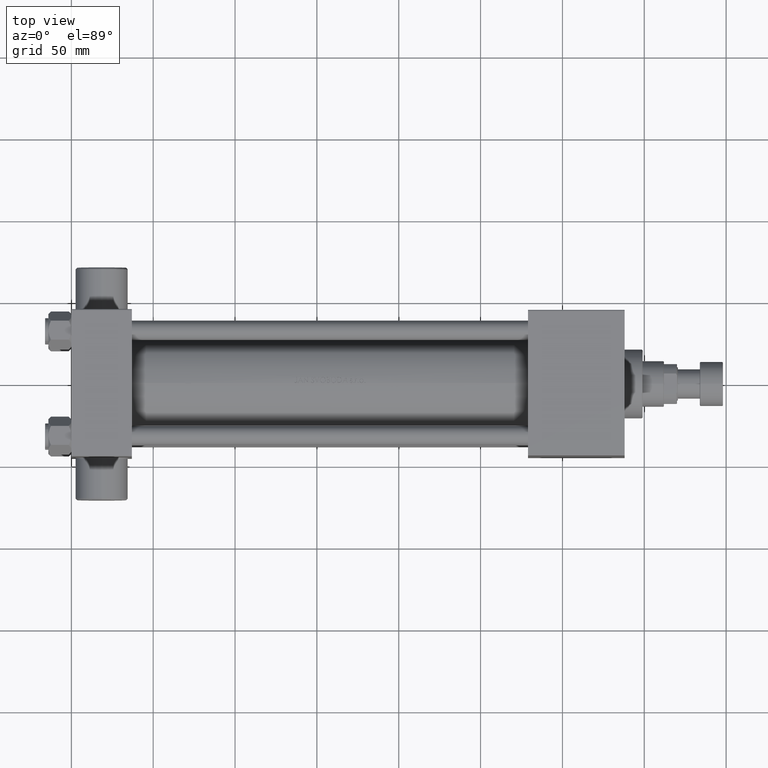
[diagram: clean part render]
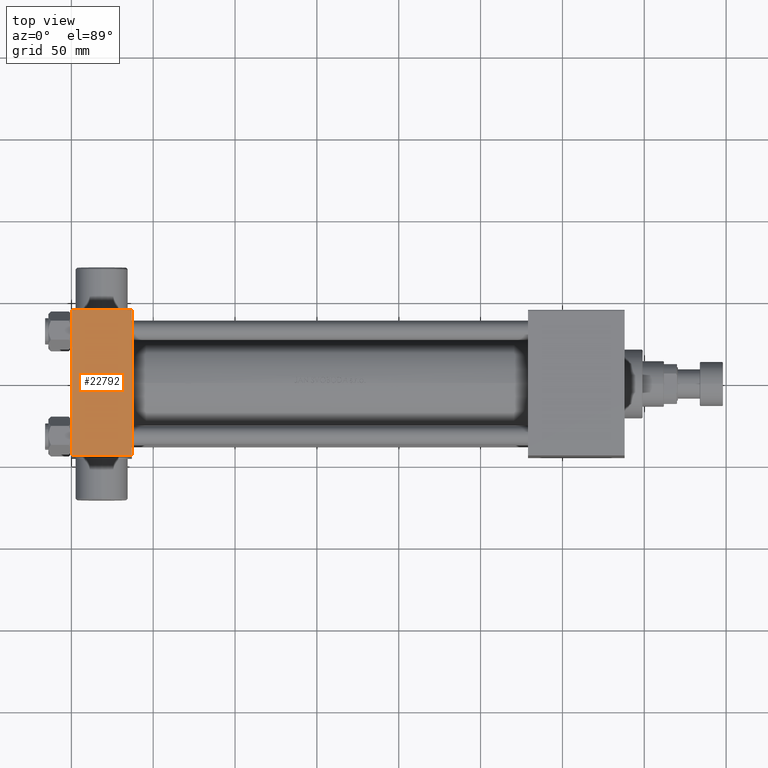
[diagram: same view with one face highlighted and labeled with its STEP entity id]
A machine part, top view. The second image highlights one B-rep face of the part: STEP entity #22792.
In plain terms, the highlighted planar face has unit normal (0, 0, -1).
Its self-contained STEP definition (entity closure, byte-faithful):
#83 = LINE ( 'NONE', #32972, #18837 ) ;
#271 = VECTOR ( 'NONE', #46014, 1000.000000000000000 ) ;
#521 = PLANE ( 'NONE',  #14014 ) ;
#3953 = LINE ( 'NONE', #21218, #41964 ) ;
#4535 = DIRECTION ( 'NONE',  ( 0.000000000000000000, 1.541976423090495633E-16, -1.000000000000000000 ) ) ;
#6140 = EDGE_CURVE ( 'NONE', #29141, #9899, #83, .T. ) ;
#9857 = VERTEX_POINT ( 'NONE', #37502 ) ;
#9899 = VERTEX_POINT ( 'NONE', #39124 ) ;
#12685 = VECTOR ( 'NONE', #18140, 1000.000000000000000 ) ;
#14014 = AXIS2_PLACEMENT_3D ( 'NONE', #29356, #4535, #19866 ) ;
#14391 = ORIENTED_EDGE ( 'NONE', *, *, #15393, .T. ) ;
#14592 = LINE ( 'NONE', #25008, #12685 ) ;
#15393 = EDGE_CURVE ( 'NONE', #9857, #40842, #17635, .T. ) ;
#17431 = DIRECTION ( 'NONE',  ( -1.000000000000000000, 0.000000000000000000, 0.000000000000000000 ) ) ;
#17635 = LINE ( 'NONE', #31608, #271 ) ;
#18140 = DIRECTION ( 'NONE',  ( 1.000000000000000000, 0.000000000000000000, 0.000000000000000000 ) ) ;
#18837 = VECTOR ( 'NONE', #29387, 1000.000000000000000 ) ;
#19866 = DIRECTION ( 'NONE',  ( 0.000000000000000000, 1.000000000000000000, 1.541976423090495633E-16 ) ) ;
#21218 = CARTESIAN_POINT ( 'NONE',  ( 0.000000000000000000, 44.49999999999998579, 45.00000000000001421 ) ) ;
#22792 = ADVANCED_FACE ( 'NONE', ( #36932 ), #521, .F. ) ;
#24433 = CARTESIAN_POINT ( 'NONE',  ( 37.00000000000000000, 44.49999999999998579, 45.00000000000001421 ) ) ;
#25008 = CARTESIAN_POINT ( 'NONE',  ( 37.00000000000000000, -44.49999999999998579, 45.00000000000000000 ) ) ;
#26459 = ORIENTED_EDGE ( 'NONE', *, *, #39668, .T. ) ;
#29141 = VERTEX_POINT ( 'NONE', #24433 ) ;
#29356 = CARTESIAN_POINT ( 'NONE',  ( 37.00000000000000000, 44.99999999999998579, 45.00000000000001421 ) ) ;
#29387 = DIRECTION ( 'NONE',  ( 0.000000000000000000, -1.000000000000000000, -1.541976423090495387E-16 ) ) ;
#31608 = CARTESIAN_POINT ( 'NONE',  ( 0.000000000000000000, 44.99999999999998579, 45.00000000000001421 ) ) ;
#32972 = CARTESIAN_POINT ( 'NONE',  ( 37.00000000000000000, 44.99999999999998579, 45.00000000000001421 ) ) ;
#36932 = FACE_OUTER_BOUND ( 'NONE', #37831, .T. ) ;
#37502 = CARTESIAN_POINT ( 'NONE',  ( 0.000000000000000000, 44.49999999999998579, 45.00000000000001421 ) ) ;
#37677 = ORIENTED_EDGE ( 'NONE', *, *, #6140, .F. ) ;
#37831 = EDGE_LOOP ( 'NONE', ( #14391, #42206, #37677, #26459 ) ) ;
#39124 = CARTESIAN_POINT ( 'NONE',  ( 37.00000000000000000, -44.49999999999995737, 45.00000000000000000 ) ) ;
#39668 = EDGE_CURVE ( 'NONE', #29141, #9857, #3953, .T. ) ;
#40842 = VERTEX_POINT ( 'NONE', #45623 ) ;
#41964 = VECTOR ( 'NONE', #17431, 1000.000000000000000 ) ;
#42206 = ORIENTED_EDGE ( 'NONE', *, *, #46528, .T. ) ;
#45623 = CARTESIAN_POINT ( 'NONE',  ( 0.000000000000000000, -44.49999999999995737, 45.00000000000000000 ) ) ;
#46014 = DIRECTION ( 'NONE',  ( 0.000000000000000000, -1.000000000000000000, -1.541976423090495387E-16 ) ) ;
#46528 = EDGE_CURVE ( 'NONE', #40842, #9899, #14592, .T. ) ;